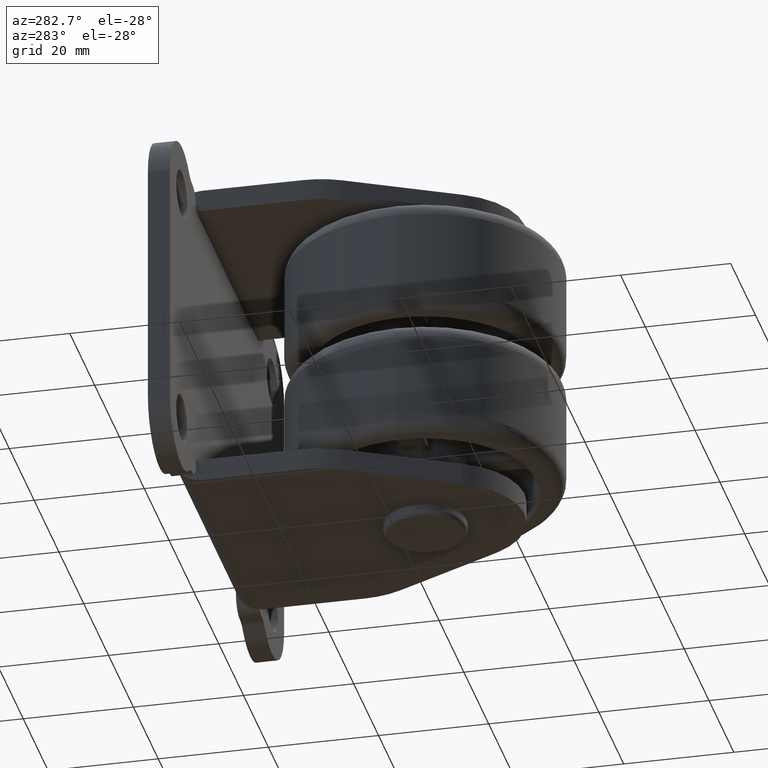
[diagram: clean part render]
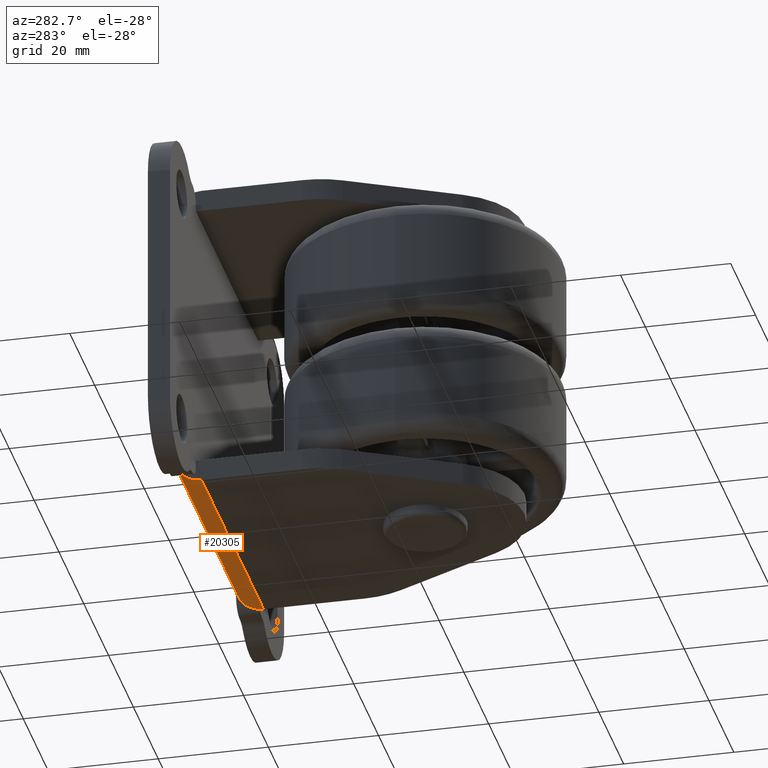
[diagram: same view with one face highlighted and labeled with its STEP entity id]
A machine part, auxiliary view. The second image highlights one B-rep face of the part: STEP entity #20305.
In plain terms, the highlighted cylindrical surface (edge-blend (fillet) strip) has radius 5 mm, axis along (-1, -0, -0).
Its self-contained STEP definition (entity closure, byte-faithful):
#141 = LINE ( 'NONE', #265, #13759 ) ;
#265 = CARTESIAN_POINT ( 'NONE',  ( 18.10542098948559797, 31.43608458371520342, -24.50000000000000000 ) ) ;
#462 = ORIENTED_EDGE ( 'NONE', *, *, #18240, .F. ) ;
#534 = CARTESIAN_POINT ( 'NONE',  ( -31.89457901051440203, 31.43608458371520342, -24.50000000000000000 ) ) ;
#710 = CIRCLE ( 'NONE', #23448, 5.000000000000000888 ) ;
#1164 = CYLINDRICAL_SURFACE ( 'NONE', #13192, 5.000000000000000888 ) ;
#1553 = CARTESIAN_POINT ( 'NONE',  ( 18.10542098948559797, 31.43608458371520342, -19.50000000000000000 ) ) ;
#1946 = CARTESIAN_POINT ( 'NONE',  ( -31.89457901051440203, 36.43608458371519987, -19.50000000000000000 ) ) ;
#2306 = VERTEX_POINT ( 'NONE', #23787 ) ;
#2470 = CIRCLE ( 'NONE', #8905, 5.000000000000000888 ) ;
#2540 = CARTESIAN_POINT ( 'NONE',  ( 18.10542098948559797, 31.43608458371520342, -24.50000000000000000 ) ) ;
#3943 = LINE ( 'NONE', #1946, #23413 ) ;
#4217 = CIRCLE ( 'NONE', #19221, 4.999999999999997335 ) ;
#4823 = EDGE_CURVE ( 'NONE', #8507, #10295, #4217, .T. ) ;
#5336 = FACE_OUTER_BOUND ( 'NONE', #7252, .T. ) ;
#5902 = ORIENTED_EDGE ( 'NONE', *, *, #13752, .F. ) ;
#6074 = DIRECTION ( 'NONE',  ( 1.000000000000000000, -9.690807431081789928E-31, 2.775557561562895295E-16 ) ) ;
#6577 = CARTESIAN_POINT ( 'NONE',  ( 18.10542098948559797, 36.43608458371519987, -19.50000000000000000 ) ) ;
#6740 = DIRECTION ( 'NONE',  ( 1.000000000000000000, 0.000000000000000000, 0.000000000000000000 ) ) ;
#7252 = EDGE_LOOP ( 'NONE', ( #12687, #5902, #19710, #21961, #25409, #462 ) ) ;
#7870 = DIRECTION ( 'NONE',  ( 1.000000000000000000, 0.000000000000000000, 0.000000000000000000 ) ) ;
#8507 = VERTEX_POINT ( 'NONE', #19993 ) ;
#8905 = AXIS2_PLACEMENT_3D ( 'NONE', #20843, #6740, #10916 ) ;
#9589 = DIRECTION ( 'NONE',  ( -1.000000000000000000, 0.000000000000000000, 0.000000000000000000 ) ) ;
#10149 = CIRCLE ( 'NONE', #11847, 4.999999999999997335 ) ;
#10295 = VERTEX_POINT ( 'NONE', #6577 ) ;
#10916 = DIRECTION ( 'NONE',  ( 0.000000000000000000, -1.000000000000000000, -3.469446951953613400E-15 ) ) ;
#11067 = DIRECTION ( 'NONE',  ( 0.000000000000000000, 1.000000000000000000, 4.163336342344339393E-15 ) ) ;
#11847 = AXIS2_PLACEMENT_3D ( 'NONE', #20339, #26532, #11067 ) ;
#12687 = ORIENTED_EDGE ( 'NONE', *, *, #4823, .F. ) ;
#13024 = CARTESIAN_POINT ( 'NONE',  ( -31.89457901051440203, 36.12021425304205025, -21.24897948556624883 ) ) ;
#13192 = AXIS2_PLACEMENT_3D ( 'NONE', #19553, #15540, #13523 ) ;
#13523 = DIRECTION ( 'NONE',  ( 0.000000000000000000, 4.163336342344336238E-15, -1.000000000000000000 ) ) ;
#13752 = EDGE_CURVE ( 'NONE', #24197, #8507, #2470, .T. ) ;
#13759 = VECTOR ( 'NONE', #6074, 1000.000000000000000 ) ;
#13917 = DIRECTION ( 'NONE',  ( 0.000000000000000000, 1.000000000000000000, 3.469446951953616161E-15 ) ) ;
#14928 = VERTEX_POINT ( 'NONE', #13024 ) ;
#15540 = DIRECTION ( 'NONE',  ( -1.000000000000000000, -1.864772235241624971E-31, -7.763674017176149404E-46 ) ) ;
#18240 = EDGE_CURVE ( 'NONE', #10295, #2306, #3943, .T. ) ;
#18289 = EDGE_CURVE ( 'NONE', #14928, #25790, #10149, .T. ) ;
#19221 = AXIS2_PLACEMENT_3D ( 'NONE', #1553, #7870, #13917 ) ;
#19553 = CARTESIAN_POINT ( 'NONE',  ( 18.10542098948559797, 31.43608458371520342, -19.50000000000000000 ) ) ;
#19710 = ORIENTED_EDGE ( 'NONE', *, *, #22643, .F. ) ;
#19993 = CARTESIAN_POINT ( 'NONE',  ( 18.10542098948559797, 36.12021425304195077, -21.24897948556640159 ) ) ;
#20305 = ADVANCED_FACE ( 'NONE', ( #5336 ), #1164, .T. ) ;
#20339 = CARTESIAN_POINT ( 'NONE',  ( -31.89457901051440203, 31.43608458371520342, -19.50000000000000000 ) ) ;
#20843 = CARTESIAN_POINT ( 'NONE',  ( 18.10542098948559797, 31.43608458371520342, -19.50000000000000000 ) ) ;
#21961 = ORIENTED_EDGE ( 'NONE', *, *, #18289, .F. ) ;
#22207 = DIRECTION ( 'NONE',  ( 0.000000000000000000, -1.000000000000000000, -3.469446951953613400E-15 ) ) ;
#22491 = DIRECTION ( 'NONE',  ( -1.000000000000000000, 9.690807431081789928E-31, -2.775557561562895295E-16 ) ) ;
#22643 = EDGE_CURVE ( 'NONE', #25790, #24197, #141, .T. ) ;
#23413 = VECTOR ( 'NONE', #22491, 1000.000000000000000 ) ;
#23448 = AXIS2_PLACEMENT_3D ( 'NONE', #24094, #9589, #22207 ) ;
#23787 = CARTESIAN_POINT ( 'NONE',  ( -31.89457901051440203, 36.43608458371519987, -19.50000000000000000 ) ) ;
#24094 = CARTESIAN_POINT ( 'NONE',  ( -31.89457901051440203, 31.43608458371520342, -19.50000000000000000 ) ) ;
#24197 = VERTEX_POINT ( 'NONE', #2540 ) ;
#24522 = EDGE_CURVE ( 'NONE', #2306, #14928, #710, .T. ) ;
#25409 = ORIENTED_EDGE ( 'NONE', *, *, #24522, .F. ) ;
#25790 = VERTEX_POINT ( 'NONE', #534 ) ;
#26532 = DIRECTION ( 'NONE',  ( -1.000000000000000000, 0.000000000000000000, 0.000000000000000000 ) ) ;